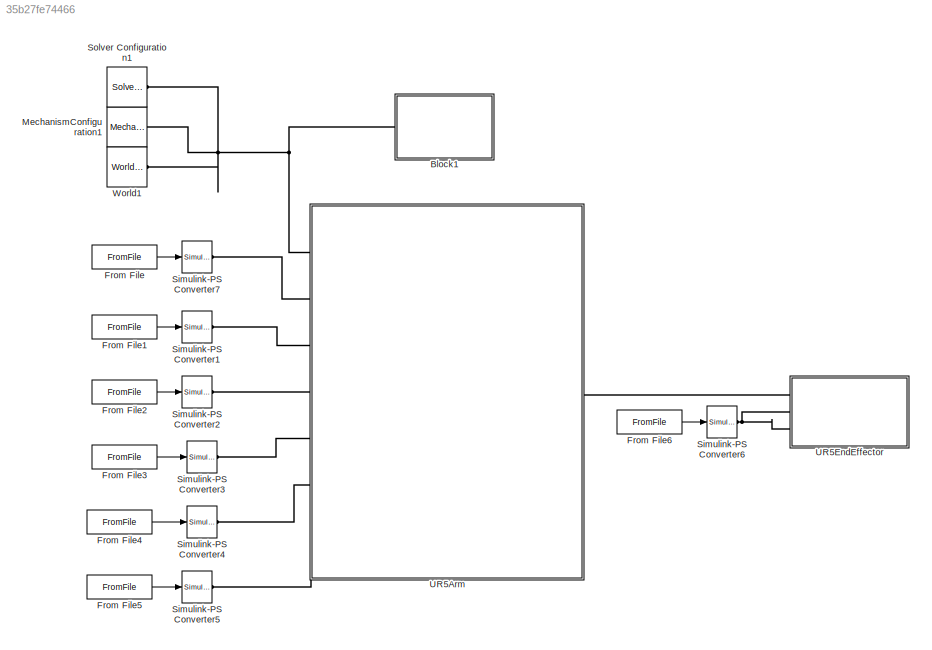
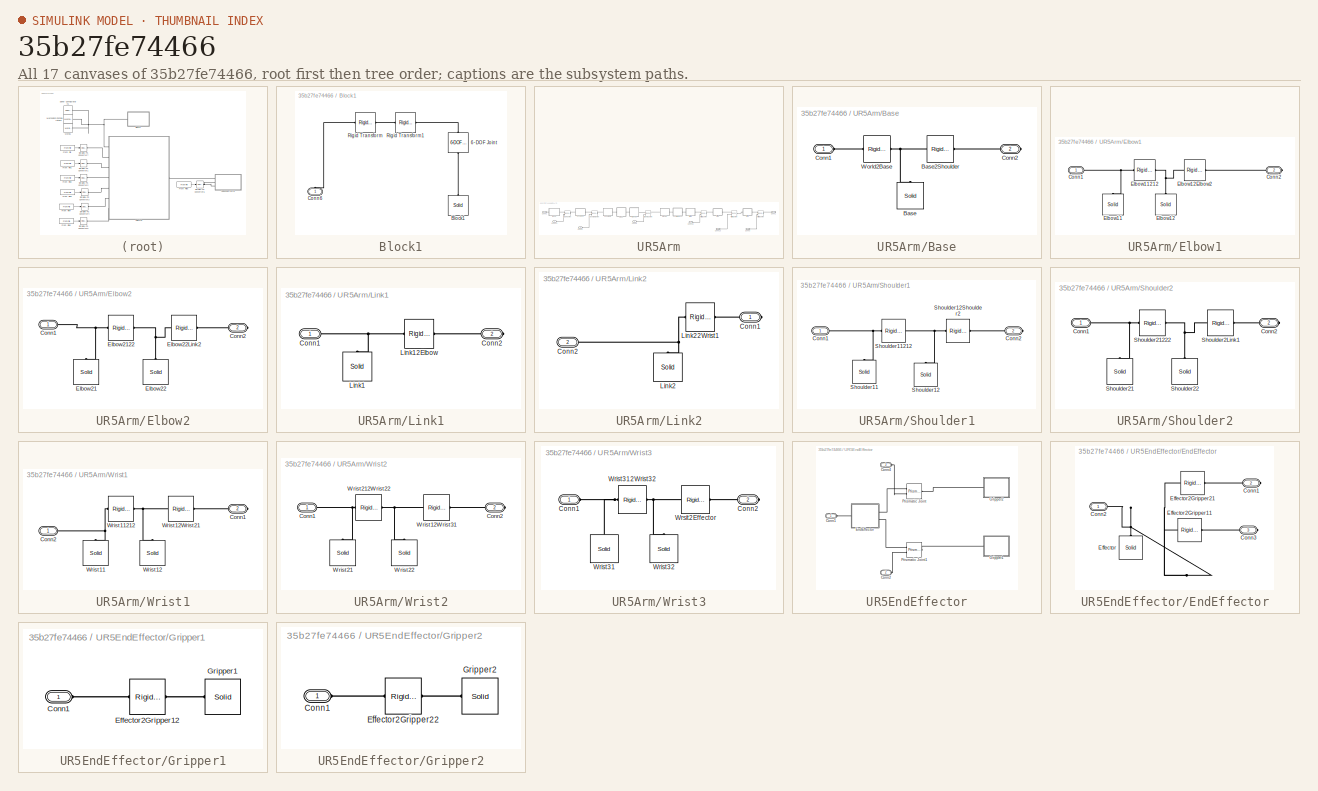
[diagram: thumbnail index - all 17 canvases of the model, root first then tree order]
MODEL slx_35b27fe74466
KIND model
CONFIG AbsTol = auto
CONFIG EnableMultiTasking = off
CONFIG FixedStep = 0.00001
CONFIG MaxStep = auto
CONFIG MinStep = auto
CONFIG RelTol = 1e-3
CONFIG SampleTimeConstraint = Unconstrained
CONFIG Solver = VariableStepAuto
CONFIG SolverName = VariableStepAuto
CONFIG StartTime = 0.0
CONFIG StopTime = 120.0
BLOCK [SubSystem] Block1
  Ports = [0, 0, 0, 0, 0, 1]
  RequestExecContextInheritance = off
  Variant = off
BLOCK [Reference] Block1/6-DOF Joint  REF=sm_lib/Joints/6-DOF Joint
  Ports = [0, 0, 0, 0, 0, 1, 1]
  SourceBlock = sm_lib/Joints/6-DOF Joint
  SourceProductBaseCode = MS
  SourceProductName = Simscape Multibody
  SourceType = 6-DOF Joint
BLOCK [Reference] Block1/Block1  REF=sm_lib/Body Elements/Solid
  Ports = [0, 0, 0, 0, 0, 0, 1]
  SourceBlock = sm_lib/Body Elements/Solid
  SourceProductBaseCode = MS
  SourceProductName = Simscape Multibody
  SourceType = Solid
BLOCK [PMIOPort] Block1/Conn6
  Port = 1
  Side = Left
BLOCK [Reference] Block1/Rigid Transform  REF=sm_lib/Frames and
Transforms/Rigid
Transform
  Ports = [0, 0, 0, 0, 0, 1, 1]
  SourceBlock = sm_lib/Frames and\nTransforms/Rigid\nTransform
  SourceProductBaseCode = MS
  SourceProductName = Simscape Multibody
  SourceType = Rigid\nTransform
BLOCK [Reference] Block1/Rigid Transform1  REF=sm_lib/Frames and
Transforms/Rigid
Transform
  Ports = [0, 0, 0, 0, 0, 1, 1]
  SourceBlock = sm_lib/Frames and\nTransforms/Rigid\nTransform
  SourceProductBaseCode = MS
  SourceProductName = Simscape Multibody
  SourceType = Rigid\nTransform
BLOCK [FromFile] From File
  FileName = theta1.mat
  SampleTime = 0
BLOCK [FromFile] From File1
  FileName = theta2.mat
  SampleTime = 0
BLOCK [FromFile] From File2
  FileName = theta3.mat
  SampleTime = 0
BLOCK [FromFile] From File3
  FileName = theta4.mat
  SampleTime = 0
BLOCK [FromFile] From File4
  FileName = theta5.mat
  SampleTime = 0
BLOCK [FromFile] From File5
  FileName = theta6.mat
  SampleTime = 0
BLOCK [FromFile] From File6
  FileName = gripper.mat
  SampleTime = 0
BLOCK [Reference] MechanismConfiguration1  REF=sm_lib/Utilities/Mechanism
Configuration
  Ports = [0, 0, 0, 0, 0, 0, 1]
  SourceBlock = sm_lib/Utilities/Mechanism\nConfiguration
  SourceProductBaseCode = MS
  SourceProductName = Simscape Multibody
  SourceType = Mechanism\nConfiguration
BLOCK [Reference] Simulink-PS Converter1  REF=nesl_utility/Simulink-PS
Converter
  Ports = [1, 0, 0, 0, 0, 0, 1]
  SourceBlock = nesl_utility/Simulink-PS\nConverter
  SourceProductBaseCode = SS
  SourceProductName = Simscape
  SourceType = Simulink-PS\nConverter
BLOCK [Reference] Simulink-PS Converter2  REF=nesl_utility/Simulink-PS
Converter
  Ports = [1, 0, 0, 0, 0, 0, 1]
  SourceBlock = nesl_utility/Simulink-PS\nConverter
  SourceProductBaseCode = SS
  SourceProductName = Simscape
  SourceType = Simulink-PS\nConverter
BLOCK [Reference] Simulink-PS Converter3  REF=nesl_utility/Simulink-PS
Converter
  Ports = [1, 0, 0, 0, 0, 0, 1]
  SourceBlock = nesl_utility/Simulink-PS\nConverter
  SourceProductBaseCode = SS
  SourceProductName = Simscape
  SourceType = Simulink-PS\nConverter
BLOCK [Reference] Simulink-PS Converter4  REF=nesl_utility/Simulink-PS
Converter
  Ports = [1, 0, 0, 0, 0, 0, 1]
  SourceBlock = nesl_utility/Simulink-PS\nConverter
  SourceProductBaseCode = SS
  SourceProductName = Simscape
  SourceType = Simulink-PS\nConverter
BLOCK [Reference] Simulink-PS Converter5  REF=nesl_utility/Simulink-PS
Converter
  Ports = [1, 0, 0, 0, 0, 0, 1]
  SourceBlock = nesl_utility/Simulink-PS\nConverter
  SourceProductBaseCode = SS
  SourceProductName = Simscape
  SourceType = Simulink-PS\nConverter
BLOCK [Reference] Simulink-PS Converter6  REF=nesl_utility/Simulink-PS
Converter
  Ports = [1, 0, 0, 0, 0, 0, 1]
  SourceBlock = nesl_utility/Simulink-PS\nConverter
  SourceProductBaseCode = SS
  SourceProductName = Simscape
  SourceType = Simulink-PS\nConverter
BLOCK [Reference] Simulink-PS Converter7  REF=nesl_utility/Simulink-PS
Converter
  Ports = [1, 0, 0, 0, 0, 0, 1]
  SourceBlock = nesl_utility/Simulink-PS\nConverter
  SourceProductBaseCode = SS
  SourceProductName = Simscape
  SourceType = Simulink-PS\nConverter
BLOCK [Reference] Solver Configuration1  REF=nesl_utility/Solver
Configuration
  Ports = [0, 0, 0, 0, 0, 0, 1]
  SourceBlock = nesl_utility/Solver\nConfiguration
  SourceProductBaseCode = SS
  SourceProductName = Simscape
  SourceType = Solver\nConfiguration
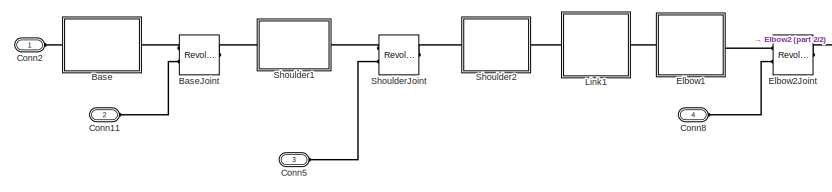
[diagram: UR5Arm - part 1/2, left side, full height]
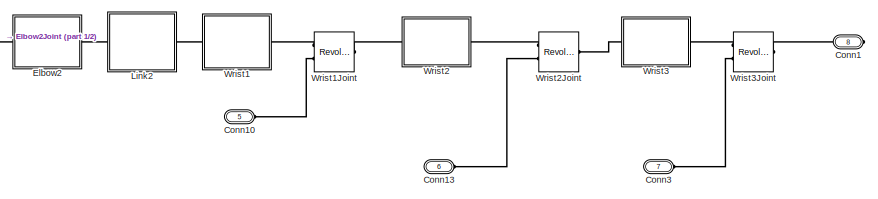
[diagram: UR5Arm - part 2/2, right side, full height]
BLOCK [SubSystem] UR5Arm
  Ports = [0, 0, 0, 0, 0, 7, 1]
  RequestExecContextInheritance = off
  Variant = off
BLOCK [SubSystem] UR5Arm/Base
  Ports = [0, 0, 0, 0, 0, 1, 1]
  RequestExecContextInheritance = off
  Variant = off
BLOCK [Reference] UR5Arm/Base/ Base  REF=sm_lib/Body Elements/Solid
  Ports = [0, 0, 0, 0, 0, 0, 1]
  SourceBlock = sm_lib/Body Elements/Solid
  SourceProductBaseCode = MS
  SourceProductName = Simscape Multibody
  SourceType = Solid
BLOCK [Reference] UR5Arm/Base/Base2Shoulder  REF=sm_lib/Frames and
Transforms/Rigid
Transform
  Ports = [0, 0, 0, 0, 0, 1, 1]
  SourceBlock = sm_lib/Frames and\nTransforms/Rigid\nTransform
  SourceProductBaseCode = MS
  SourceProductName = Simscape Multibody
  SourceType = Rigid\nTransform
BLOCK [PMIOPort] UR5Arm/Base/Conn1
  Port = 1
  Side = Left
BLOCK [PMIOPort] UR5Arm/Base/Conn2
  Port = 2
  Side = Right
BLOCK [Reference] UR5Arm/Base/World2Base  REF=sm_lib/Frames and
Transforms/Rigid
Transform
  Ports = [0, 0, 0, 0, 0, 1, 1]
  SourceBlock = sm_lib/Frames and\nTransforms/Rigid\nTransform
  SourceProductBaseCode = MS
  SourceProductName = Simscape Multibody
  SourceType = Rigid\nTransform
BLOCK [Reference] UR5Arm/BaseJoint  REF=sm_lib/Joints/Revolute Joint
  Ports = [0, 0, 0, 0, 0, 2, 1]
  SourceBlock = sm_lib/Joints/Revolute Joint
  SourceProductBaseCode = MS
  SourceProductName = Simscape Multibody
  SourceType = Revolute Joint
BLOCK [PMIOPort] UR5Arm/Conn1
  Port = 8
  Side = Right
BLOCK [PMIOPort] UR5Arm/Conn10
  Port = 5
  Side = Left
BLOCK [PMIOPort] UR5Arm/Conn11
  Port = 2
  Side = Left
BLOCK [PMIOPort] UR5Arm/Conn13
  Port = 6
  Side = Left
BLOCK [PMIOPort] UR5Arm/Conn2
  Port = 1
  Side = Left
BLOCK [PMIOPort] UR5Arm/Conn3
  Port = 7
  Side = Left
BLOCK [PMIOPort] UR5Arm/Conn5
  Port = 3
  Side = Left
BLOCK [PMIOPort] UR5Arm/Conn8
  Port = 4
  Side = Left
BLOCK [SubSystem] UR5Arm/Elbow1
  Ports = [0, 0, 0, 0, 0, 1, 1]
  RequestExecContextInheritance = off
  Variant = off
BLOCK [PMIOPort] UR5Arm/Elbow1/Conn1
  Port = 1
  Side = Left
BLOCK [PMIOPort] UR5Arm/Elbow1/Conn2
  Port = 2
  Side = Right
BLOCK [Reference] UR5Arm/Elbow1/Elbow11  REF=sm_lib/Body Elements/Solid
  Ports = [0, 0, 0, 0, 0, 0, 1]
  SourceBlock = sm_lib/Body Elements/Solid
  SourceProductBaseCode = MS
  SourceProductName = Simscape Multibody
  SourceType = Solid
BLOCK [Reference] UR5Arm/Elbow1/Elbow11212  REF=sm_lib/Frames and
Transforms/Rigid
Transform
  Ports = [0, 0, 0, 0, 0, 1, 1]
  SourceBlock = sm_lib/Frames and\nTransforms/Rigid\nTransform
  SourceProductBaseCode = MS
  SourceProductName = Simscape Multibody
  SourceType = Rigid\nTransform
BLOCK [Reference] UR5Arm/Elbow1/Elbow12  REF=sm_lib/Body Elements/Solid
  Ports = [0, 0, 0, 0, 0, 0, 1]
  SourceBlock = sm_lib/Body Elements/Solid
  SourceProductBaseCode = MS
  SourceProductName = Simscape Multibody
  SourceType = Solid
BLOCK [Reference] UR5Arm/Elbow1/Elbow12Elbow2  REF=sm_lib/Frames and
Transforms/Rigid
Transform
  Ports = [0, 0, 0, 0, 0, 1, 1]
  SourceBlock = sm_lib/Frames and\nTransforms/Rigid\nTransform
  SourceProductBaseCode = MS
  SourceProductName = Simscape Multibody
  SourceType = Rigid\nTransform
BLOCK [SubSystem] UR5Arm/Elbow2
  Ports = [0, 0, 0, 0, 0, 1, 1]
  RequestExecContextInheritance = off
  Variant = off
BLOCK [PMIOPort] UR5Arm/Elbow2/Conn1
  Port = 1
  Side = Left
BLOCK [PMIOPort] UR5Arm/Elbow2/Conn2
  Port = 2
  Side = Right
BLOCK [Reference] UR5Arm/Elbow2/Elbow21  REF=sm_lib/Body Elements/Solid
  Ports = [0, 0, 0, 0, 0, 0, 1]
  SourceBlock = sm_lib/Body Elements/Solid
  SourceProductBaseCode = MS
  SourceProductName = Simscape Multibody
  SourceType = Solid
BLOCK [Reference] UR5Arm/Elbow2/Elbow2122  REF=sm_lib/Frames and
Transforms/Rigid
Transform
  Ports = [0, 0, 0, 0, 0, 1, 1]
  SourceBlock = sm_lib/Frames and\nTransforms/Rigid\nTransform
  SourceProductBaseCode = MS
  SourceProductName = Simscape Multibody
  SourceType = Rigid\nTransform
BLOCK [Reference] UR5Arm/Elbow2/Elbow22  REF=sm_lib/Body Elements/Solid
  Ports = [0, 0, 0, 0, 0, 0, 1]
  SourceBlock = sm_lib/Body Elements/Solid
  SourceProductBaseCode = MS
  SourceProductName = Simscape Multibody
  SourceType = Solid
BLOCK [Reference] UR5Arm/Elbow2/Elbow22Link2  REF=sm_lib/Frames and
Transforms/Rigid
Transform
  Ports = [0, 0, 0, 0, 0, 1, 1]
  SourceBlock = sm_lib/Frames and\nTransforms/Rigid\nTransform
  SourceProductBaseCode = MS
  SourceProductName = Simscape Multibody
  SourceType = Rigid\nTransform
BLOCK [Reference] UR5Arm/Elbow2Joint  REF=sm_lib/Joints/Revolute Joint
  Ports = [0, 0, 0, 0, 0, 2, 1]
  SourceBlock = sm_lib/Joints/Revolute Joint
  SourceProductBaseCode = MS
  SourceProductName = Simscape Multibody
  SourceType = Revolute Joint
BLOCK [SubSystem] UR5Arm/Link1
  Ports = [0, 0, 0, 0, 0, 1, 1]
  RequestExecContextInheritance = off
  Variant = off
BLOCK [Reference] UR5Arm/Link1/ Link1  REF=sm_lib/Body Elements/Solid
  Ports = [0, 0, 0, 0, 0, 0, 1]
  SourceBlock = sm_lib/Body Elements/Solid
  SourceProductBaseCode = MS
  SourceProductName = Simscape Multibody
  SourceType = Solid
BLOCK [PMIOPort] UR5Arm/Link1/Conn1
  Port = 1
  Side = Left
BLOCK [PMIOPort] UR5Arm/Link1/Conn2
  Port = 2
  Side = Right
BLOCK [Reference] UR5Arm/Link1/Link12Elbow  REF=sm_lib/Frames and
Transforms/Rigid
Transform
  Ports = [0, 0, 0, 0, 0, 1, 1]
  SourceBlock = sm_lib/Frames and\nTransforms/Rigid\nTransform
  SourceProductBaseCode = MS
  SourceProductName = Simscape Multibody
  SourceType = Rigid\nTransform
BLOCK [SubSystem] UR5Arm/Link2
  Ports = [0, 0, 0, 0, 0, 1, 1]
  RequestExecContextInheritance = off
  Variant = off
BLOCK [Reference] UR5Arm/Link2/ Link2  REF=sm_lib/Body Elements/Solid
  Ports = [0, 0, 0, 0, 0, 0, 1]
  SourceBlock = sm_lib/Body Elements/Solid
  SourceProductBaseCode = MS
  SourceProductName = Simscape Multibody
  SourceType = Solid
BLOCK [PMIOPort] UR5Arm/Link2/Conn1
  Port = 1
  Side = Right
BLOCK [PMIOPort] UR5Arm/Link2/Conn2
  Port = 2
  Side = Left
BLOCK [Reference] UR5Arm/Link2/Link22Wrist1  REF=sm_lib/Frames and
Transforms/Rigid
Transform
  Ports = [0, 0, 0, 0, 0, 1, 1]
  SourceBlock = sm_lib/Frames and\nTransforms/Rigid\nTransform
  SourceProductBaseCode = MS
  SourceProductName = Simscape Multibody
  SourceType = Rigid\nTransform
BLOCK [SubSystem] UR5Arm/Shoulder1
  Ports = [0, 0, 0, 0, 0, 1, 1]
  RequestExecContextInheritance = off
  Variant = off
BLOCK [PMIOPort] UR5Arm/Shoulder1/Conn1
  Port = 1
  Side = Left
BLOCK [PMIOPort] UR5Arm/Shoulder1/Conn2
  Port = 2
  Side = Right
BLOCK [Reference] UR5Arm/Shoulder1/Shoulder11  REF=sm_lib/Body Elements/Solid
  Ports = [0, 0, 0, 0, 0, 0, 1]
  SourceBlock = sm_lib/Body Elements/Solid
  SourceProductBaseCode = MS
  SourceProductName = Simscape Multibody
  SourceType = Solid
BLOCK [Reference] UR5Arm/Shoulder1/Shoulder11212  REF=sm_lib/Frames and
Transforms/Rigid
Transform
  Ports = [0, 0, 0, 0, 0, 1, 1]
  SourceBlock = sm_lib/Frames and\nTransforms/Rigid\nTransform
  SourceProductBaseCode = MS
  SourceProductName = Simscape Multibody
  SourceType = Rigid\nTransform
BLOCK [Reference] UR5Arm/Shoulder1/Shoulder12  REF=sm_lib/Body Elements/Solid
  Ports = [0, 0, 0, 0, 0, 0, 1]
  SourceBlock = sm_lib/Body Elements/Solid
  SourceProductBaseCode = MS
  SourceProductName = Simscape Multibody
  SourceType = Solid
BLOCK [Reference] UR5Arm/Shoulder1/Shoulder12Shoulder2  REF=sm_lib/Frames and
Transforms/Rigid
Transform
  Ports = [0, 0, 0, 0, 0, 1, 1]
  SourceBlock = sm_lib/Frames and\nTransforms/Rigid\nTransform
  SourceProductBaseCode = MS
  SourceProductName = Simscape Multibody
  SourceType = Rigid\nTransform
BLOCK [SubSystem] UR5Arm/Shoulder2
  Ports = [0, 0, 0, 0, 0, 1, 1]
  RequestExecContextInheritance = off
  Variant = off
BLOCK [PMIOPort] UR5Arm/Shoulder2/Conn1
  Port = 1
  Side = Left
BLOCK [PMIOPort] UR5Arm/Shoulder2/Conn2
  Port = 2
  Side = Right
BLOCK [Reference] UR5Arm/Shoulder2/Shoulder21  REF=sm_lib/Body Elements/Solid
  Ports = [0, 0, 0, 0, 0, 0, 1]
  SourceBlock = sm_lib/Body Elements/Solid
  SourceProductBaseCode = MS
  SourceProductName = Simscape Multibody
  SourceType = Solid
BLOCK [Reference] UR5Arm/Shoulder2/Shoulder21222  REF=sm_lib/Frames and
Transforms/Rigid
Transform
  Ports = [0, 0, 0, 0, 0, 1, 1]
  SourceBlock = sm_lib/Frames and\nTransforms/Rigid\nTransform
  SourceProductBaseCode = MS
  SourceProductName = Simscape Multibody
  SourceType = Rigid\nTransform
BLOCK [Reference] UR5Arm/Shoulder2/Shoulder22  REF=sm_lib/Body Elements/Solid
  Ports = [0, 0, 0, 0, 0, 0, 1]
  SourceBlock = sm_lib/Body Elements/Solid
  SourceProductBaseCode = MS
  SourceProductName = Simscape Multibody
  SourceType = Solid
BLOCK [Reference] UR5Arm/Shoulder2/Shoulder2Link1  REF=sm_lib/Frames and
Transforms/Rigid
Transform
  Ports = [0, 0, 0, 0, 0, 1, 1]
  SourceBlock = sm_lib/Frames and\nTransforms/Rigid\nTransform
  SourceProductBaseCode = MS
  SourceProductName = Simscape Multibody
  SourceType = Rigid\nTransform
BLOCK [Reference] UR5Arm/ShoulderJoint  REF=sm_lib/Joints/Revolute Joint
  Ports = [0, 0, 0, 0, 0, 2, 1]
  SourceBlock = sm_lib/Joints/Revolute Joint
  SourceProductBaseCode = MS
  SourceProductName = Simscape Multibody
  SourceType = Revolute Joint
BLOCK [SubSystem] UR5Arm/Wrist1
  Ports = [0, 0, 0, 0, 0, 1, 1]
  RequestExecContextInheritance = off
  Variant = off
BLOCK [PMIOPort] UR5Arm/Wrist1/Conn1
  Port = 2
  Side = Right
BLOCK [PMIOPort] UR5Arm/Wrist1/Conn2
  Port = 1
  Side = Left
BLOCK [Reference] UR5Arm/Wrist1/Wrist11  REF=sm_lib/Body Elements/Solid
  Ports = [0, 0, 0, 0, 0, 0, 1]
  SourceBlock = sm_lib/Body Elements/Solid
  SourceProductBaseCode = MS
  SourceProductName = Simscape Multibody
  SourceType = Solid
BLOCK [Reference] UR5Arm/Wrist1/Wrist11212  REF=sm_lib/Frames and
Transforms/Rigid
Transform
  Ports = [0, 0, 0, 0, 0, 1, 1]
  SourceBlock = sm_lib/Frames and\nTransforms/Rigid\nTransform
  SourceProductBaseCode = MS
  SourceProductName = Simscape Multibody
  SourceType = Rigid\nTransform
BLOCK [Reference] UR5Arm/Wrist1/Wrist12  REF=sm_lib/Body Elements/Solid
  Ports = [0, 0, 0, 0, 0, 0, 1]
  SourceBlock = sm_lib/Body Elements/Solid
  SourceProductBaseCode = MS
  SourceProductName = Simscape Multibody
  SourceType = Solid
BLOCK [Reference] UR5Arm/Wrist1/Wrist12Wrist21  REF=sm_lib/Frames and
Transforms/Rigid
Transform
  Ports = [0, 0, 0, 0, 0, 1, 1]
  SourceBlock = sm_lib/Frames and\nTransforms/Rigid\nTransform
  SourceProductBaseCode = MS
  SourceProductName = Simscape Multibody
  SourceType = Rigid\nTransform
BLOCK [Reference] UR5Arm/Wrist1Joint  REF=sm_lib/Joints/Revolute Joint
  Ports = [0, 0, 0, 0, 0, 2, 1]
  SourceBlock = sm_lib/Joints/Revolute Joint
  SourceProductBaseCode = MS
  SourceProductName = Simscape Multibody
  SourceType = Revolute Joint
BLOCK [SubSystem] UR5Arm/Wrist2
  Ports = [0, 0, 0, 0, 0, 1, 1]
  RequestExecContextInheritance = off
  Variant = off
BLOCK [PMIOPort] UR5Arm/Wrist2/Conn1
  Port = 1
  Side = Left
BLOCK [PMIOPort] UR5Arm/Wrist2/Conn2
  Port = 2
  Side = Right
BLOCK [Reference] UR5Arm/Wrist2/Wrist12Wrist31  REF=sm_lib/Frames and
Transforms/Rigid
Transform
  Ports = [0, 0, 0, 0, 0, 1, 1]
  SourceBlock = sm_lib/Frames and\nTransforms/Rigid\nTransform
  SourceProductBaseCode = MS
  SourceProductName = Simscape Multibody
  SourceType = Rigid\nTransform
BLOCK [Reference] UR5Arm/Wrist2/Wrist21  REF=sm_lib/Body Elements/Solid
  Ports = [0, 0, 0, 0, 0, 0, 1]
  SourceBlock = sm_lib/Body Elements/Solid
  SourceProductBaseCode = MS
  SourceProductName = Simscape Multibody
  SourceType = Solid
BLOCK [Reference] UR5Arm/Wrist2/Wrist212Wrist22  REF=sm_lib/Frames and
Transforms/Rigid
Transform
  Ports = [0, 0, 0, 0, 0, 1, 1]
  SourceBlock = sm_lib/Frames and\nTransforms/Rigid\nTransform
  SourceProductBaseCode = MS
  SourceProductName = Simscape Multibody
  SourceType = Rigid\nTransform
BLOCK [Reference] UR5Arm/Wrist2/Wrist22  REF=sm_lib/Body Elements/Solid
  Ports = [0, 0, 0, 0, 0, 0, 1]
  SourceBlock = sm_lib/Body Elements/Solid
  SourceProductBaseCode = MS
  SourceProductName = Simscape Multibody
  SourceType = Solid
BLOCK [Reference] UR5Arm/Wrist2Joint  REF=sm_lib/Joints/Revolute Joint
  Ports = [0, 0, 0, 0, 0, 2, 1]
  SourceBlock = sm_lib/Joints/Revolute Joint
  SourceProductBaseCode = MS
  SourceProductName = Simscape Multibody
  SourceType = Revolute Joint
BLOCK [SubSystem] UR5Arm/Wrist3
  Ports = [0, 0, 0, 0, 0, 1, 1]
  RequestExecContextInheritance = off
  Variant = off
BLOCK [PMIOPort] UR5Arm/Wrist3/Conn1
  Port = 1
  Side = Left
BLOCK [PMIOPort] UR5Arm/Wrist3/Conn2
  Port = 2
  Side = Right
BLOCK [Reference] UR5Arm/Wrist3/Wrist31  REF=sm_lib/Body Elements/Solid
  Ports = [0, 0, 0, 0, 0, 0, 1]
  SourceBlock = sm_lib/Body Elements/Solid
  SourceProductBaseCode = MS
  SourceProductName = Simscape Multibody
  SourceType = Solid
BLOCK [Reference] UR5Arm/Wrist3/Wrist312Wrist32  REF=sm_lib/Frames and
Transforms/Rigid
Transform
  Ports = [0, 0, 0, 0, 0, 1, 1]
  SourceBlock = sm_lib/Frames and\nTransforms/Rigid\nTransform
  SourceProductBaseCode = MS
  SourceProductName = Simscape Multibody
  SourceType = Rigid\nTransform
BLOCK [Reference] UR5Arm/Wrist3/Wrist32  REF=sm_lib/Body Elements/Solid
  Ports = [0, 0, 0, 0, 0, 0, 1]
  SourceBlock = sm_lib/Body Elements/Solid
  SourceProductBaseCode = MS
  SourceProductName = Simscape Multibody
  SourceType = Solid
BLOCK [Reference] UR5Arm/Wrist3/Wrsit2Effector  REF=sm_lib/Frames and
Transforms/Rigid
Transform
  Ports = [0, 0, 0, 0, 0, 1, 1]
  SourceBlock = sm_lib/Frames and\nTransforms/Rigid\nTransform
  SourceProductBaseCode = MS
  SourceProductName = Simscape Multibody
  SourceType = Rigid\nTransform
BLOCK [Reference] UR5Arm/Wrist3Joint  REF=sm_lib/Joints/Revolute Joint
  Ports = [0, 0, 0, 0, 0, 2, 1]
  SourceBlock = sm_lib/Joints/Revolute Joint
  SourceProductBaseCode = MS
  SourceProductName = Simscape Multibody
  SourceType = Revolute Joint
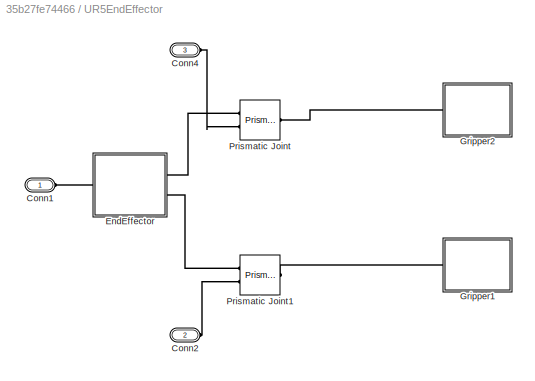
BLOCK [SubSystem] UR5EndEffector
  Ports = [0, 0, 0, 0, 0, 3]
  RequestExecContextInheritance = off
  Variant = off
BLOCK [PMIOPort] UR5EndEffector/Conn1
  Port = 1
  Side = Left
BLOCK [PMIOPort] UR5EndEffector/Conn2
  Port = 2
  Side = Left
BLOCK [PMIOPort] UR5EndEffector/Conn4
  Port = 3
  Side = Left
BLOCK [SubSystem] UR5EndEffector/EndEffector
  Ports = [0, 0, 0, 0, 0, 1, 2]
  RequestExecContextInheritance = off
  Variant = off
BLOCK [Reference] UR5EndEffector/EndEffector/ Effector  REF=sm_lib/Body Elements/Solid
  Ports = [0, 0, 0, 0, 0, 0, 1]
  SourceBlock = sm_lib/Body Elements/Solid
  SourceProductBaseCode = MS
  SourceProductName = Simscape Multibody
  SourceType = Solid
BLOCK [PMIOPort] UR5EndEffector/EndEffector/Conn1
  Port = 2
  Side = Right
BLOCK [PMIOPort] UR5EndEffector/EndEffector/Conn2
  Port = 1
  Side = Left
BLOCK [PMIOPort] UR5EndEffector/EndEffector/Conn3
  Port = 3
  Side = Right
BLOCK [Reference] UR5EndEffector/EndEffector/Effector2Gripper11  REF=sm_lib/Frames and
Transforms/Rigid
Transform
  Ports = [0, 0, 0, 0, 0, 1, 1]
  SourceBlock = sm_lib/Frames and\nTransforms/Rigid\nTransform
  SourceProductBaseCode = MS
  SourceProductName = Simscape Multibody
  SourceType = Rigid\nTransform
BLOCK [Reference] UR5EndEffector/EndEffector/Effector2Gripper21  REF=sm_lib/Frames and
Transforms/Rigid
Transform
  Ports = [0, 0, 0, 0, 0, 1, 1]
  SourceBlock = sm_lib/Frames and\nTransforms/Rigid\nTransform
  SourceProductBaseCode = MS
  SourceProductName = Simscape Multibody
  SourceType = Rigid\nTransform
BLOCK [SubSystem] UR5EndEffector/Gripper1
  Ports = [0, 0, 0, 0, 0, 1]
  RequestExecContextInheritance = off
  Variant = off
BLOCK [PMIOPort] UR5EndEffector/Gripper1/Conn1
  Port = 1
  Side = Left
BLOCK [Reference] UR5EndEffector/Gripper1/Effector2Gripper12  REF=sm_lib/Frames and
Transforms/Rigid
Transform
  Ports = [0, 0, 0, 0, 0, 1, 1]
  SourceBlock = sm_lib/Frames and\nTransforms/Rigid\nTransform
  SourceProductBaseCode = MS
  SourceProductName = Simscape Multibody
  SourceType = Rigid\nTransform
BLOCK [Reference] UR5EndEffector/Gripper1/Gripper1  REF=sm_lib/Body Elements/Solid
  Ports = [0, 0, 0, 0, 0, 0, 1]
  SourceBlock = sm_lib/Body Elements/Solid
  SourceProductBaseCode = MS
  SourceProductName = Simscape Multibody
  SourceType = Solid
BLOCK [SubSystem] UR5EndEffector/Gripper2
  Ports = [0, 0, 0, 0, 0, 1]
  RequestExecContextInheritance = off
  Variant = off
BLOCK [PMIOPort] UR5EndEffector/Gripper2/Conn1
  Port = 1
  Side = Left
BLOCK [Reference] UR5EndEffector/Gripper2/Effector2Gripper22  REF=sm_lib/Frames and
Transforms/Rigid
Transform
  Ports = [0, 0, 0, 0, 0, 1, 1]
  SourceBlock = sm_lib/Frames and\nTransforms/Rigid\nTransform
  SourceProductBaseCode = MS
  SourceProductName = Simscape Multibody
  SourceType = Rigid\nTransform
BLOCK [Reference] UR5EndEffector/Gripper2/Gripper2  REF=sm_lib/Body Elements/Solid
  Ports = [0, 0, 0, 0, 0, 0, 1]
  SourceBlock = sm_lib/Body Elements/Solid
  SourceProductBaseCode = MS
  SourceProductName = Simscape Multibody
  SourceType = Solid
BLOCK [Reference] UR5EndEffector/Prismatic Joint  REF=sm_lib/Joints/Prismatic
Joint
  Ports = [0, 0, 0, 0, 0, 2, 1]
  SourceBlock = sm_lib/Joints/Prismatic\nJoint
  SourceProductBaseCode = MS
  SourceProductName = Simscape Multibody
  SourceType = Prismatic\nJoint
BLOCK [Reference] UR5EndEffector/Prismatic Joint1  REF=sm_lib/Joints/Prismatic
Joint
  Ports = [0, 0, 0, 0, 0, 2, 1]
  SourceBlock = sm_lib/Joints/Prismatic\nJoint
  SourceProductBaseCode = MS
  SourceProductName = Simscape Multibody
  SourceType = Prismatic\nJoint
BLOCK [Reference] World1  REF=sm_lib/Frames and
Transforms/World Frame
  Ports = [0, 0, 0, 0, 0, 0, 1]
  SourceBlock = sm_lib/Frames and\nTransforms/World Frame
  SourceProductBaseCode = MS
  SourceProductName = Simscape Multibody
  SourceType = World Frame
LINE From File1:1 -> Simulink-PS Converter1:1
LINE From File2:1 -> Simulink-PS Converter2:1
LINE From File3:1 -> Simulink-PS Converter3:1
LINE From File4:1 -> Simulink-PS Converter4:1
LINE From File5:1 -> Simulink-PS Converter5:1
LINE From File6:1 -> Simulink-PS Converter6:1
LINE From File:1 -> Simulink-PS Converter7:1
PLINE Block1/6-DOF Joint:LConn1 -- Block1/Rigid Transform1:RConn1
PLINE Block1/6-DOF Joint:RConn1 -- Block1/Block1:RConn1
PLINE Block1/Conn6:RConn1 -- Block1/Rigid Transform:LConn1
PLINE Block1/Rigid Transform1:LConn1 -- Block1/Rigid Transform:RConn1
PNET net1: Block1:LConn1 -- MechanismConfiguration1:RConn1 -- Solver Configuration1:RConn1 -- UR5Arm:LConn1 -- World1:RConn1
PLINE Simulink-PS Converter1:RConn1 -- UR5Arm:LConn3
PLINE Simulink-PS Converter2:RConn1 -- UR5Arm:LConn4
PLINE Simulink-PS Converter3:RConn1 -- UR5Arm:LConn5
PLINE Simulink-PS Converter4:RConn1 -- UR5Arm:LConn6
PLINE Simulink-PS Converter5:RConn1 -- UR5Arm:LConn7
PNET net2: Simulink-PS Converter6:RConn1 -- UR5EndEffector:LConn2 -- UR5EndEffector:LConn3
PLINE Simulink-PS Converter7:RConn1 -- UR5Arm:LConn2
PNET net3: UR5Arm/Base/ Base:RConn1 -- UR5Arm/Base/Base2Shoulder:LConn1 -- UR5Arm/Base/World2Base:RConn1
PLINE UR5Arm/Base/Base2Shoulder:RConn1 -- UR5Arm/Base/Conn2:RConn1
PLINE UR5Arm/Base/Conn1:RConn1 -- UR5Arm/Base/World2Base:LConn1
PLINE UR5Arm/Base:LConn1 -- UR5Arm/Conn2:RConn1
PLINE UR5Arm/Base:RConn1 -- UR5Arm/BaseJoint:LConn1
PLINE UR5Arm/BaseJoint:LConn2 -- UR5Arm/Conn11:RConn1
PLINE UR5Arm/BaseJoint:RConn1 -- UR5Arm/Shoulder1:LConn1
PLINE UR5Arm/Conn10:RConn1 -- UR5Arm/Wrist1Joint:LConn2
PLINE UR5Arm/Conn13:RConn1 -- UR5Arm/Wrist2Joint:LConn2
PLINE UR5Arm/Conn1:RConn1 -- UR5Arm/Wrist3Joint:RConn1
PLINE UR5Arm/Conn3:RConn1 -- UR5Arm/Wrist3Joint:LConn2
PLINE UR5Arm/Conn5:RConn1 -- UR5Arm/ShoulderJoint:LConn2
PLINE UR5Arm/Conn8:RConn1 -- UR5Arm/Elbow2Joint:LConn2
PNET net4: UR5Arm/Elbow1/Conn1:RConn1 -- UR5Arm/Elbow1/Elbow11212:LConn1 -- UR5Arm/Elbow1/Elbow11:RConn1
PLINE UR5Arm/Elbow1/Conn2:RConn1 -- UR5Arm/Elbow1/Elbow12Elbow2:RConn1
PNET net5: UR5Arm/Elbow1/Elbow11212:RConn1 -- UR5Arm/Elbow1/Elbow12:RConn1 -- UR5Arm/Elbow1/Elbow12Elbow2:LConn1
PLINE UR5Arm/Elbow1:LConn1 -- UR5Arm/Link1:RConn1
PLINE UR5Arm/Elbow1:RConn1 -- UR5Arm/Elbow2Joint:LConn1
PNET net6: UR5Arm/Elbow2/Conn1:RConn1 -- UR5Arm/Elbow2/Elbow2122:LConn1 -- UR5Arm/Elbow2/Elbow21:RConn1
PLINE UR5Arm/Elbow2/Conn2:RConn1 -- UR5Arm/Elbow2/Elbow22Link2:RConn1
PNET net7: UR5Arm/Elbow2/Elbow2122:RConn1 -- UR5Arm/Elbow2/Elbow22:RConn1 -- UR5Arm/Elbow2/Elbow22Link2:LConn1
PLINE UR5Arm/Elbow2:LConn1 -- UR5Arm/Elbow2Joint:RConn1
PLINE UR5Arm/Elbow2:RConn1 -- UR5Arm/Link2:LConn1
PNET net8: UR5Arm/Link1/ Link1:RConn1 -- UR5Arm/Link1/Conn1:RConn1 -- UR5Arm/Link1/Link12Elbow:LConn1
PLINE UR5Arm/Link1/Conn2:RConn1 -- UR5Arm/Link1/Link12Elbow:RConn1
PLINE UR5Arm/Link1:LConn1 -- UR5Arm/Shoulder2:RConn1
PNET net9: UR5Arm/Link2/ Link2:RConn1 -- UR5Arm/Link2/Conn2:RConn1 -- UR5Arm/Link2/Link22Wrist1:LConn1
PLINE UR5Arm/Link2/Conn1:RConn1 -- UR5Arm/Link2/Link22Wrist1:RConn1
PLINE UR5Arm/Link2:RConn1 -- UR5Arm/Wrist1:LConn1
PNET net10: UR5Arm/Shoulder1/Conn1:RConn1 -- UR5Arm/Shoulder1/Shoulder11212:LConn1 -- UR5Arm/Shoulder1/Shoulder11:RConn1
PLINE UR5Arm/Shoulder1/Conn2:RConn1 -- UR5Arm/Shoulder1/Shoulder12Shoulder2:RConn1
PNET net11: UR5Arm/Shoulder1/Shoulder11212:RConn1 -- UR5Arm/Shoulder1/Shoulder12:RConn1 -- UR5Arm/Shoulder1/Shoulder12Shoulder2:LConn1
PLINE UR5Arm/Shoulder1:RConn1 -- UR5Arm/ShoulderJoint:LConn1
PNET net12: UR5Arm/Shoulder2/Conn1:RConn1 -- UR5Arm/Shoulder2/Shoulder21222:LConn1 -- UR5Arm/Shoulder2/Shoulder21:RConn1
PLINE UR5Arm/Shoulder2/Conn2:RConn1 -- UR5Arm/Shoulder2/Shoulder2Link1:RConn1
PNET net13: UR5Arm/Shoulder2/Shoulder21222:RConn1 -- UR5Arm/Shoulder2/Shoulder22:RConn1 -- UR5Arm/Shoulder2/Shoulder2Link1:LConn1
PLINE UR5Arm/Shoulder2:LConn1 -- UR5Arm/ShoulderJoint:RConn1
PLINE UR5Arm/Wrist1/Conn1:RConn1 -- UR5Arm/Wrist1/Wrist12Wrist21:RConn1
PNET net14: UR5Arm/Wrist1/Conn2:RConn1 -- UR5Arm/Wrist1/Wrist11212:LConn1 -- UR5Arm/Wrist1/Wrist11:RConn1
PNET net15: UR5Arm/Wrist1/Wrist11212:RConn1 -- UR5Arm/Wrist1/Wrist12:RConn1 -- UR5Arm/Wrist1/Wrist12Wrist21:LConn1
PLINE UR5Arm/Wrist1:RConn1 -- UR5Arm/Wrist1Joint:LConn1
PLINE UR5Arm/Wrist1Joint:RConn1 -- UR5Arm/Wrist2:LConn1
PNET net16: UR5Arm/Wrist2/Conn1:RConn1 -- UR5Arm/Wrist2/Wrist212Wrist22:LConn1 -- UR5Arm/Wrist2/Wrist21:RConn1
PLINE UR5Arm/Wrist2/Conn2:RConn1 -- UR5Arm/Wrist2/Wrist12Wrist31:RConn1
PNET net17: UR5Arm/Wrist2/Wrist12Wrist31:LConn1 -- UR5Arm/Wrist2/Wrist212Wrist22:RConn1 -- UR5Arm/Wrist2/Wrist22:RConn1
PLINE UR5Arm/Wrist2:RConn1 -- UR5Arm/Wrist2Joint:LConn1
PLINE UR5Arm/Wrist2Joint:RConn1 -- UR5Arm/Wrist3:LConn1
PNET net18: UR5Arm/Wrist3/Conn1:RConn1 -- UR5Arm/Wrist3/Wrist312Wrist32:LConn1 -- UR5Arm/Wrist3/Wrist31:RConn1
PLINE UR5Arm/Wrist3/Conn2:RConn1 -- UR5Arm/Wrist3/Wrsit2Effector:RConn1
PNET net19: UR5Arm/Wrist3/Wrist312Wrist32:RConn1 -- UR5Arm/Wrist3/Wrist32:RConn1 -- UR5Arm/Wrist3/Wrsit2Effector:LConn1
PLINE UR5Arm/Wrist3:RConn1 -- UR5Arm/Wrist3Joint:LConn1
PLINE UR5Arm:RConn1 -- UR5EndEffector:LConn1
PLINE UR5EndEffector/Conn1:RConn1 -- UR5EndEffector/EndEffector:LConn1
PLINE UR5EndEffector/Conn2:RConn1 -- UR5EndEffector/Prismatic Joint1:LConn2
PLINE UR5EndEffector/Conn4:RConn1 -- UR5EndEffector/Prismatic Joint:LConn2
PNET net20: UR5EndEffector/EndEffector/ Effector:RConn1 -- UR5EndEffector/EndEffector/Conn2:RConn1 -- UR5EndEffector/EndEffector/Effector2Gripper11:LConn1 -- UR5EndEffector/EndEffector/Effector2Gripper21:LConn1
PLINE UR5EndEffector/EndEffector/Conn1:RConn1 -- UR5EndEffector/EndEffector/Effector2Gripper21:RConn1
PLINE UR5EndEffector/EndEffector/Conn3:RConn1 -- UR5EndEffector/EndEffector/Effector2Gripper11:RConn1
PLINE UR5EndEffector/EndEffector:RConn1 -- UR5EndEffector/Prismatic Joint:LConn1
PLINE UR5EndEffector/EndEffector:RConn2 -- UR5EndEffector/Prismatic Joint1:LConn1
PLINE UR5EndEffector/Gripper1/Conn1:RConn1 -- UR5EndEffector/Gripper1/Effector2Gripper12:LConn1
PLINE UR5EndEffector/Gripper1/Effector2Gripper12:RConn1 -- UR5EndEffector/Gripper1/Gripper1:RConn1
PLINE UR5EndEffector/Gripper1:LConn1 -- UR5EndEffector/Prismatic Joint1:RConn1
PLINE UR5EndEffector/Gripper2/Conn1:RConn1 -- UR5EndEffector/Gripper2/Effector2Gripper22:LConn1
PLINE UR5EndEffector/Gripper2/Effector2Gripper22:RConn1 -- UR5EndEffector/Gripper2/Gripper2:RConn1
PLINE UR5EndEffector/Gripper2:LConn1 -- UR5EndEffector/Prismatic Joint:RConn1
note: PNET lines group multi-terminal physical nets as a canonical sorted terminal list (undirected conserving connections); 2-terminal nets keep the pairwise PLINE form
